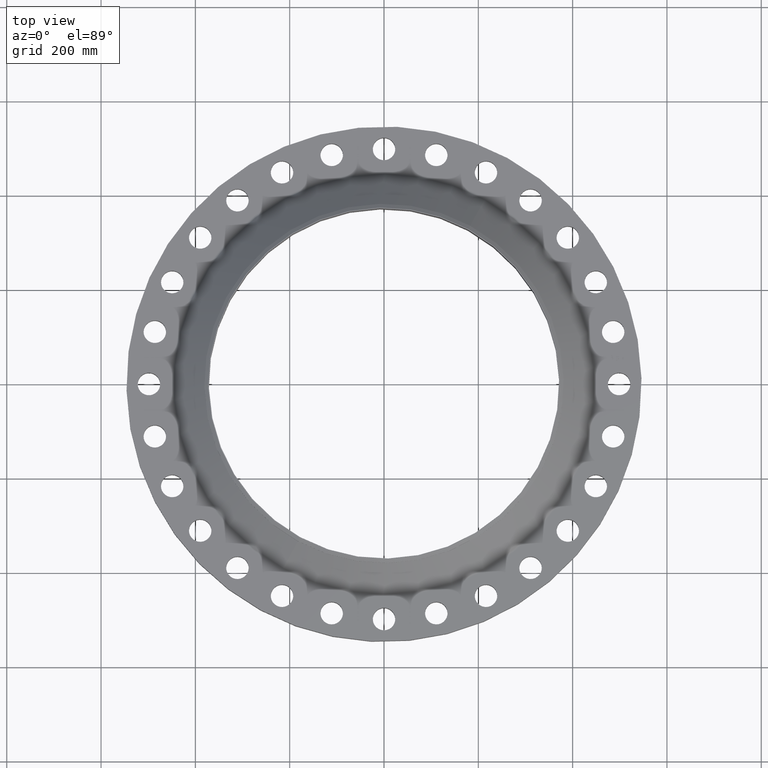
[diagram: clean part render]
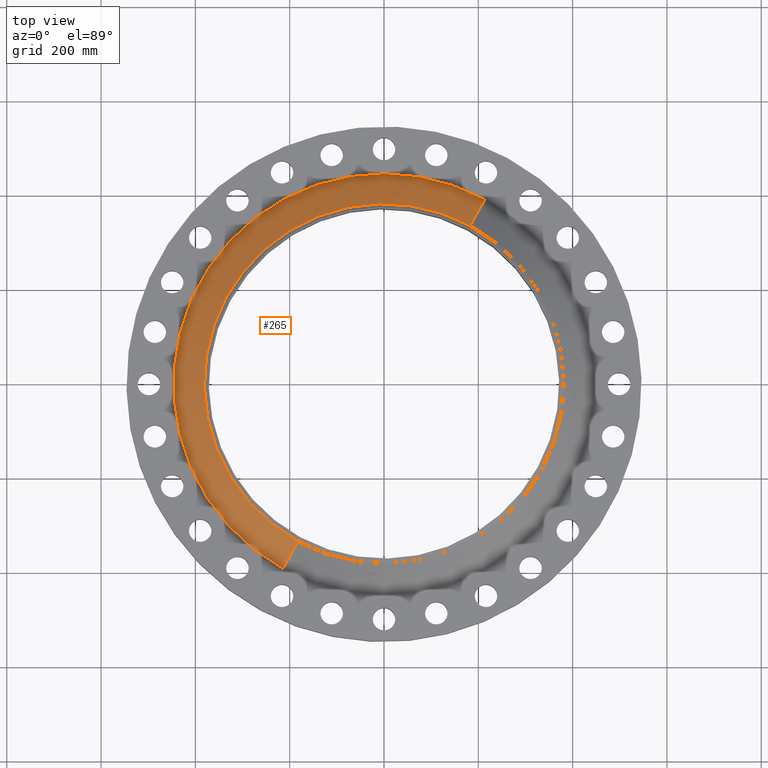
[diagram: same view with one face highlighted and labeled with its STEP entity id]
A machine part, top view. The second image highlights one B-rep face of the part: STEP entity #265.
In plain terms, the highlighted conical surface has half-angle 46.124 deg.
Its self-contained STEP definition (entity closure, byte-faithful):
#184=CARTESIAN_POINT('Vertex',(213.742954326,391.253853496,77.9726676825)) ;
#191=CARTESIAN_POINT('Vertex',(-213.742954326,-391.253853496,77.9726676825)) ;
#211=CARTESIAN_POINT('Axis2P3D Location',(0.,0.,77.9726676825)) ;
#223=CARTESIAN_POINT('Axis2P3D Location',(0.,0.,140.309342034)) ;
#228=CARTESIAN_POINT('Line Origine',(198.202042267,362.806404789,109.141004858)) ;
#232=CARTESIAN_POINT('Vertex',(182.661130209,334.358956082,140.309342034)) ;
#239=CARTESIAN_POINT('Vertex',(-182.661130209,-334.358956082,140.309342034)) ;
#242=CARTESIAN_POINT('Line Origine',(-198.202042267,-362.806404789,109.141004858)) ;
#254=CARTESIAN_POINT('Axis2P3D Location',(0.,0.,140.309342034)) ;
#212=DIRECTION('Axis2P3D Direction',(0.,0.,-1.)) ;
#224=DIRECTION('Axis2P3D Direction',(0.,0.,-1.)) ;
#225=DIRECTION('Axis2P3D XDirection',(0.479425538604,0.87758256189,0.)) ;
#229=DIRECTION('Vector Direction',(0.345588978241,0.63259638143,-0.693101779192)) ;
#243=DIRECTION('Vector Direction',(-0.345588978241,-0.63259638143,-0.693101779192)) ;
#255=DIRECTION('Axis2P3D Direction',(0.,0.,-1.)) ;
#213=AXIS2_PLACEMENT_3D('Circle Axis2P3D',#211,#212,$) ;
#226=AXIS2_PLACEMENT_3D('Cone Axis2P3D',#223,#224,#225) ;
#256=AXIS2_PLACEMENT_3D('Circle Axis2P3D',#254,#255,$) ;
#260=ORIENTED_EDGE('',*,*,#215,.F.) ;
#261=ORIENTED_EDGE('',*,*,#246,.T.) ;
#262=ORIENTED_EDGE('',*,*,#258,.T.) ;
#263=ORIENTED_EDGE('',*,*,#234,.F.) ;
#230=VECTOR('Line Direction',#229,1.) ;
#244=VECTOR('Line Direction',#243,1.) ;
#265=ADVANCED_FACE('PartBody',(#264),#227,.T.) ;
#214=CIRCLE('generated circle',#213,445.831390101) ;
#257=CIRCLE('generated circle',#256,381.000000002) ;
#227=CONICAL_SURFACE('Cone',#226,381.000000002,0.80501311788) ;
#215=EDGE_CURVE('',#192,#185,#214,.T.) ;
#234=EDGE_CURVE('',#185,#233,#231,.F.) ;
#246=EDGE_CURVE('',#192,#240,#245,.F.) ;
#258=EDGE_CURVE('',#240,#233,#257,.T.) ;
#259=EDGE_LOOP('',(#260,#261,#262,#263)) ;
#264=FACE_OUTER_BOUND('',#259,.T.) ;
#231=LINE('Line',#228,#230) ;
#245=LINE('Line',#242,#244) ;
#185=VERTEX_POINT('',#184) ;
#192=VERTEX_POINT('',#191) ;
#233=VERTEX_POINT('',#232) ;
#240=VERTEX_POINT('',#239) ;